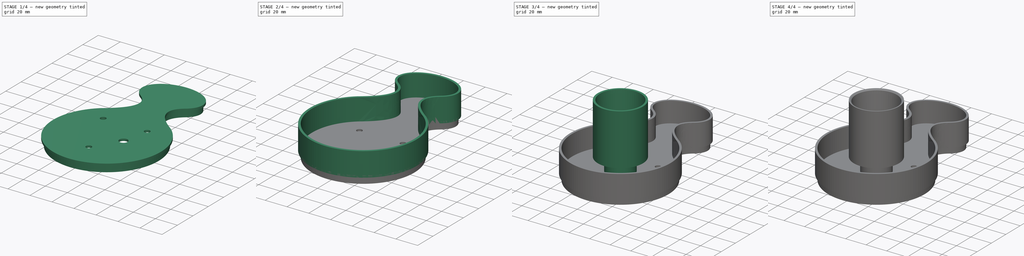
[diagram: build sequence overview — one tinted view per stage of 4, left to right]
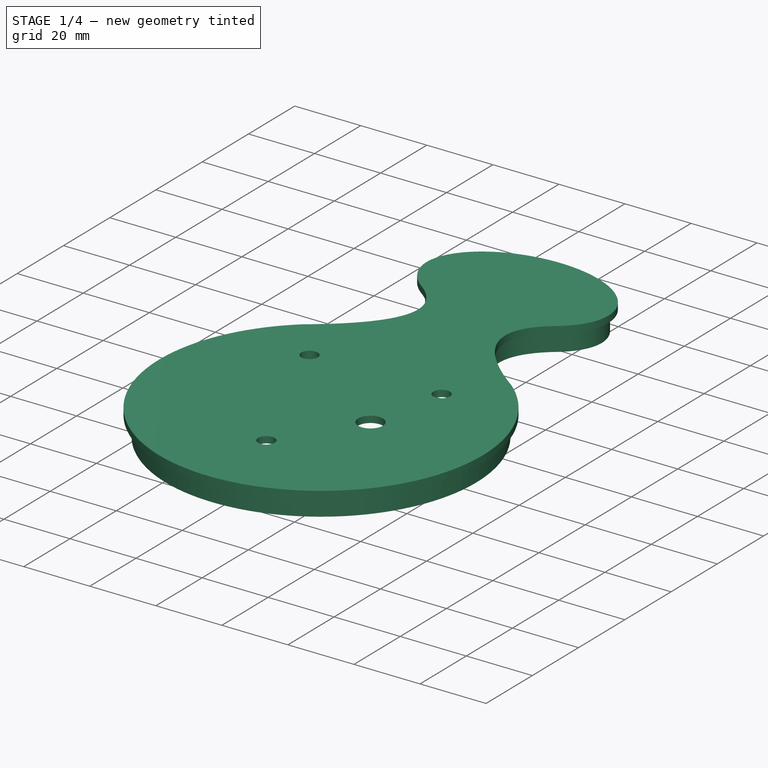
[diagram: stage 1 of 4 — iso view after this stage's code; geometry added in this stage tinted green]
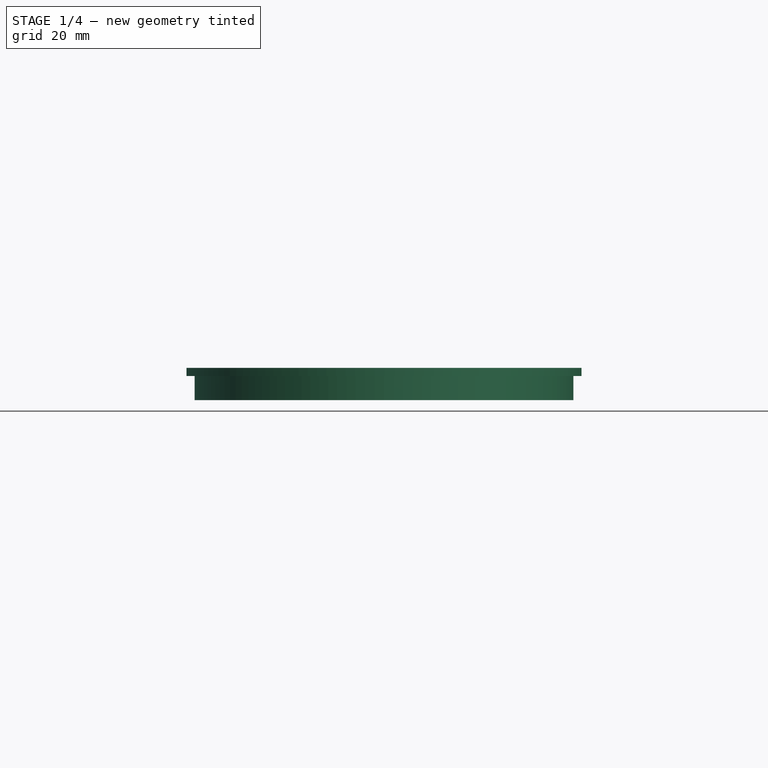
[diagram: stage 1 of 4 — front view after this stage's code; geometry added in this stage tinted green]
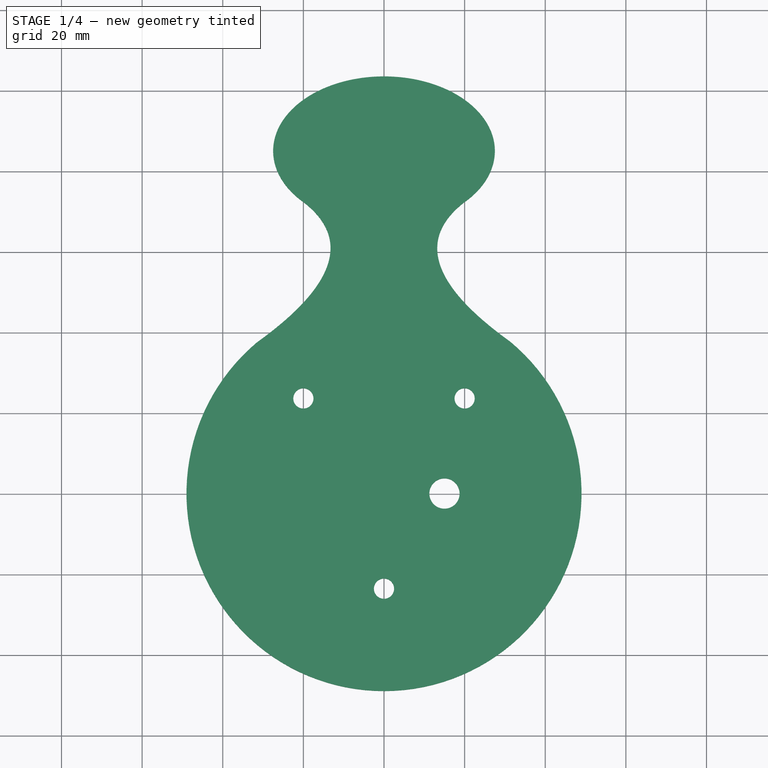
[diagram: stage 1 of 4 — top view after this stage's code; geometry added in this stage tinted green]
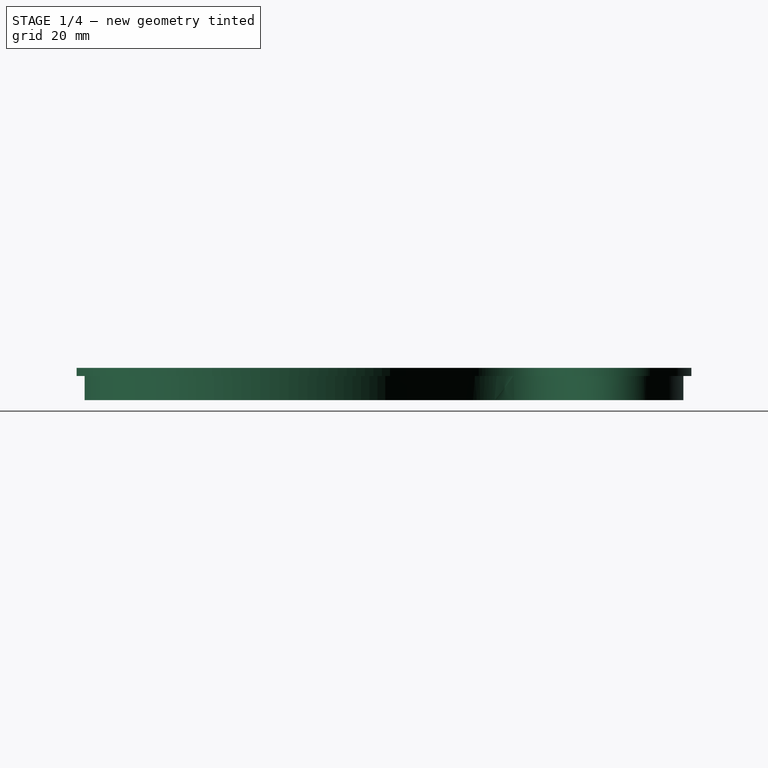
[diagram: stage 1 of 4 — right view after this stage's code; geometry added in this stage tinted green]
FCSTD DOCUMENT  (FreeCAD 0.19R)
Label: DuckOff4
License: All rights reserved
LicenseURL: http://en.wikipedia.org/wiki/All_rights_reserved
objects: Sketcher::SketchObject×12, PartDesign::Pad×5, PartDesign::Pocket×4, PartDesign::Body×3, PartDesign::Chamfer×2, PartDesign::SubtractiveLoft×1
note: 39 computed .brp shape members not serialized (recipe doc carries the construction recipe); baked Part::Feature solids carry a one-line shape summary decoded from their .brp

FEATURE [PartDesign::Body] Body001  label="Front"
  Group = -> [Sketch006,Pad002,Sketch007,Pocket001,Sketch008,Pocket002]
  Origin = -> Origin001
  Tip = -> Pocket002
FEATURE [Sketcher::SketchObject] Sketch013  label="Perimeter001"
  FullyConstrained = false
  MapMode = 5
  Support = -> [XY_Plane003]
  sketch-geometry (16):
    g0: ArcOfCircle CenterX=0 CenterY=0 CenterZ=0 NormalX=0 NormalY=0 NormalZ=1 AngleXU=0 Radius=49 StartAngle=2.27172 EndAngle=7.15911
    g1: Circle CenterX=-19.7369 CenterY=72.1176 CenterZ=0 NormalX=0 NormalY=0 NormalZ=1 AngleXU=0 Radius=1
    g2: Circle CenterX=-2.37782 CenterY=58.4113 CenterZ=0 NormalX=0 NormalY=0 NormalZ=1 AngleXU=0 Radius=1
    g3: Circle CenterX=-31.6014 CenterY=37.448 CenterZ=0 NormalX=0 NormalY=0 NormalZ=1 AngleXU=0 Radius=1
    g4: BSplineCurve PolesCount=3 KnotsCount=2 Degree=2 IsPeriodic=0
    g5: GeomPoint X=-31.6014 Y=37.448 Z=0
    g6: Circle CenterX=19.7369 CenterY=72.1176 CenterZ=0 NormalX=0 NormalY=0 NormalZ=1 AngleXU=0 Radius=0.989264
    g7: Circle CenterX=2.37782 CenterY=58.4113 CenterZ=0 NormalX=0 NormalY=0 NormalZ=1 AngleXU=0 Radius=1
    g8: Circle CenterX=31.3741 CenterY=37.6386 CenterZ=0 NormalX=0 NormalY=0 NormalZ=1 AngleXU=0 Radius=1
    g9: BSplineCurve PolesCount=3 KnotsCount=2 Degree=2 IsPeriodic=0
    g10: GeomPoint X=31.3741 Y=37.6386 Z=0
    g11: ArcOfEllipse CenterX=0 CenterY=85 CenterZ=0 NormalX=0 NormalY=0 NormalZ=1 MajorRadius=27.5 MinorRadius=18.5 AngleXU=0 StartAngle=5.51289 EndAngle=10.1951
    g12: LineSegment StartX=27.5 StartY=85 StartZ=0 EndX=-27.5 EndY=85 EndZ=0
    g13: LineSegment StartX=6.3e-15 StartY=103.5 StartZ=0 EndX=-6.3e-15 EndY=66.5 EndZ=0
    g14: GeomPoint X=20.347 Y=85 Z=0
    g15: GeomPoint X=-20.347 Y=85 Z=0
  constraints (21):
    c: Diameter(g0) = 98
    c: Equal(g1,g2)
    c: Equal(g1,g3)
    c: InternalAlignment(g1,g4)
    c: InternalAlignment(g2,g4)
    c: InternalAlignment(g3,g4)
    c: InternalAlignment(g6,g9)
    c: InternalAlignment(g7,g9)
    c: InternalAlignment(g8,g9)
    c: Coincident(g0,g5)
    c: Coincident(g0,g8)
    c: Coincident(g0,g10)
    c: Coincident(g0,g3)
    c: Symmetric(g7,g2,g-2)
    c: Coincident(g0,g-1)
    c: InternalAlignment(g12-g15 -> g11) x4
    c: Coincident(g11,g9)
    c: Coincident(g4,g11)
    c: Symmetric(g4,g9,g-2)
    c: DistanceX(g12,g11) = 27.5
    c: DistanceY(g11,g13) = 18.5
FEATURE [Sketcher::SketchObject] Sketch016  label="Holes"
  FullyConstrained = true
  MapMode = 5
  Placement = pos=(0,0,2) rot=(0,0,1;0rad)
  sketch-geometry (4):
    g0: Circle CenterX=0 CenterY=-23.6 CenterZ=0 NormalX=0 NormalY=0 NormalZ=1 AngleXU=0 Radius=2.5
    g1: Circle CenterX=-20 CenterY=23.6 CenterZ=0 NormalX=0 NormalY=0 NormalZ=1 AngleXU=0 Radius=2.5
    g2: Circle CenterX=20 CenterY=23.6 CenterZ=0 NormalX=0 NormalY=0 NormalZ=1 AngleXU=0 Radius=2.5
    g3: Circle CenterX=15 CenterY=0 CenterZ=0 NormalX=0 NormalY=0 NormalZ=1 AngleXU=0 Radius=3.75
  constraints (11):
    c: PointOnObject(g0,g-2)
    c: DistanceY(g0,g-1) = 23.6
    c: DistanceX(g1,g-1) = 20
    c: DistanceY(g-1,g1) = 23.6
    c: Symmetric(g1,g2,g-2)
    c: Equal(g1,g0)
    c: Equal(g0,g2)
    c: Diameter(g2) = 5
    c: PointOnObject(g3,g-1)
    c: DistanceX(g-1,g3) = 15
    c: Diameter(g3) = 7.5
FEATURE [PartDesign::Pad] Pad006
  Direction = (1,1,1)
  Length = 2
  Length2 = 100
  Profile = -> Sketch013
  Type = 0
FEATURE [Sketcher::SketchObject] Sketch017  label="combined edge"
  FullyConstrained = false
  Placement = pos=(0,0,2) rot=(0,0,1;0rad)
  sketch-geometry (34):
    g0: ArcOfCircle CenterX=-3.9e-15 CenterY=0 CenterZ=0 NormalX=0 NormalY=0 NormalZ=1 AngleXU=0 Radius=47 StartAngle=2.26567 EndAngle=7.15911
    g1: ArcOfEllipse CenterX=0 CenterY=85 CenterZ=0 NormalX=0 NormalY=0 NormalZ=1 MajorRadius=25.5 MinorRadius=16.5 AngleXU=0 StartAngle=5.61214 EndAngle=10.138
    g2: LineSegment StartX=25.5 StartY=85 StartZ=0 EndX=-25.5 EndY=85 EndZ=0
    g3: LineSegment StartX=0 StartY=101.5 StartZ=0 EndX=0 EndY=68.5 EndZ=0
    g4: GeomPoint X=19.4422 Y=85 Z=0
    g5: GeomPoint X=-19.4422 Y=85 Z=0
    g6: Circle CenterX=-19.2854 CenterY=74.2051 CenterZ=0 NormalX=0 NormalY=0 NormalZ=1 AngleXU=0 Radius=1
    g7: Circle CenterX=1.40607 CenterY=59 CenterZ=0 NormalX=0 NormalY=0 NormalZ=1 AngleXU=0 Radius=1
    g8: Circle CenterX=-30.0935 CenterY=36.1024 CenterZ=0 NormalX=0 NormalY=0 NormalZ=1 AngleXU=0 Radius=1
    g9: BSplineCurve PolesCount=3 KnotsCount=2 Degree=2 IsPeriodic=0
    g10: GeomPoint X=-30.0935 Y=36.1024 Z=0
    g11: Circle CenterX=19.9709 CenterY=74.7403 CenterZ=0 NormalX=0 NormalY=0 NormalZ=1 AngleXU=0 Radius=0.989264
    g12: Circle CenterX=-1.40607 CenterY=59 CenterZ=0 NormalX=0 NormalY=0 NormalZ=1 AngleXU=0 Radius=1
    g13: Circle CenterX=30.0935 CenterY=36.1024 CenterZ=0 NormalX=0 NormalY=0 NormalZ=1 AngleXU=0 Radius=1
    g14: BSplineCurve PolesCount=3 KnotsCount=2 Degree=2 IsPeriodic=0
    g15: GeomPoint X=19.9709 Y=74.7403 Z=0
    g16: GeomPoint X=30.0935 Y=36.1024 Z=0
    g17: ArcOfCircle CenterX=4.3e-15 CenterY=0 CenterZ=0 NormalX=0 NormalY=0 NormalZ=1 AngleXU=0 Radius=45 StartAngle=2.2107 EndAngle=7.21408
    g18: ArcOfEllipse CenterX=0 CenterY=85 CenterZ=0 NormalX=0 NormalY=0 NormalZ=1 MajorRadius=23.5 MinorRadius=14.5 AngleXU=0 StartAngle=5.72802 EndAngle=10.033
    g19: LineSegment StartX=23.5 StartY=85 StartZ=0 EndX=-23.5 EndY=85 EndZ=0
    g20: LineSegment StartX=0 StartY=99.5 StartZ=0 EndX=0 EndY=70.5 EndZ=0
    g21: GeomPoint X=18.4932 Y=85 Z=0
    g22: GeomPoint X=-18.4932 Y=85 Z=0
    g23: Circle CenterX=-19.2856 CenterY=76.7145 CenterZ=0 NormalX=0 NormalY=0 NormalZ=1 AngleXU=0 Radius=1
    g24: Circle CenterX=4.06677 CenterY=59 CenterZ=0 NormalX=0 NormalY=0 NormalZ=1 AngleXU=0 Radius=1
    g25: Circle CenterX=-26.8704 CenterY=36.0968 CenterZ=0 NormalX=0 NormalY=0 NormalZ=1 AngleXU=0 Radius=1
    g26: BSplineCurve PolesCount=3 KnotsCount=2 Degree=2 IsPeriodic=0
    g27: GeomPoint X=-26.8704 Y=36.0968 Z=0
    g28: Circle CenterX=19.9707 CenterY=77.3573 CenterZ=0 NormalX=0 NormalY=0 NormalZ=1 AngleXU=0 Radius=0.989264
    g29: Circle CenterX=-4.06677 CenterY=59 CenterZ=0 NormalX=0 NormalY=0 NormalZ=1 AngleXU=0 Radius=1
    g30: Circle CenterX=26.8704 CenterY=36.0968 CenterZ=0 NormalX=0 NormalY=0 NormalZ=1 AngleXU=0 Radius=1
    g31: BSplineCurve PolesCount=3 KnotsCount=2 Degree=2 IsPeriodic=0
    g32: GeomPoint X=19.9707 Y=77.3573 Z=0
    g33: GeomPoint X=26.8704 Y=36.0968 Z=0
  constraints (55):
    c: Diameter(g0) = 94
    c: InternalAlignment(g2-g5 -> g1) x4
    c: PointOnObject(g1,g-2)
    c: Horizontal(g2)
    c: Weight(g6) = 1
    c: Equal(g6,g7)
    c: Equal(g6,g8)
    c: InternalAlignment(g6,g9)
    c: InternalAlignment(g7,g9)
    c: InternalAlignment(g8,g9)
    c: InternalAlignment(g11,g14)
    c: InternalAlignment(g12,g14)
    c: InternalAlignment(g13,g14)
    c: Coincident(g0,g10)
    c: Coincident(g1,g6)
    c: Coincident(g1,g11)
    c: Coincident(g1,g15)
    c: Coincident(g0,g13)
    c: Coincident(g0,g16)
    c: Coincident(g0,g8)
    c: Symmetric(g0,g0,g-2)
    c: Symmetric(g12,g7,g-2)
    c: Coincident(g0,g-1)
    c: Distance(g0,g0) = 47
    c: DistanceY(g0,g7) = 59
    c: DistanceY(g0,g1) = 85
    c: DistanceY(g1,g3) = 16.5
    c: DistanceX(g2,g1) = 25.5
    c: Diameter(g17) = 90
    c: InternalAlignment(g19-g22 -> g18) x4
    c: PointOnObject(g18,g-2)
    c: Horizontal(g19)
    c: Weight(g23) = 1
    c: Equal(g23,g24)
    c: Equal(g23,g25)
    c: InternalAlignment(g23,g26)
    c: InternalAlignment(g24,g26)
    c: InternalAlignment(g25,g26)
    c: InternalAlignment(g28,g31)
    c: InternalAlignment(g29,g31)
    c: InternalAlignment(g30,g31)
    c: Coincident(g17,g27)
    c: Coincident(g18,g23)
    c: Coincident(g18,g28)
    c: Coincident(g18,g32)
    c: Coincident(g17,g30)
    c: Coincident(g17,g33)
    c: Coincident(g17,g25)
    c: Symmetric(g17,g17,g-2)
    c: Symmetric(g29,g24,g-2)
    c: Coincident(g17,g-1)
    c: DistanceY(g17,g24) = 59
    c: DistanceY(g17,g18) = 85
    c: DistanceY(g18,g20) = 14.5
    c: DistanceX(g19,g18) = 23.5
FEATURE [PartDesign::Pad] Pad007
  BaseFeature = -> Pad006
  Direction = (1,1,1)
  Length = 8
  Length2 = 100
  Profile = -> Sketch017
  Reversed = true
  Type = 0
FEATURE [PartDesign::Pocket] Pocket003
  BaseFeature = -> Pad007
  Length = 5
  Length2 = 100
  Profile = -> Sketch016
  Type = 1
FEATURE [PartDesign::Body] Body003  label="Back"
  Group = -> [Sketch013,Sketch016,Pad006,Sketch017,Pad007,Pocket003]
  Origin = -> Origin003
  Placement = pos=(0,0,22) rot=(0,0,1;0rad)
  Tip = -> Pocket003
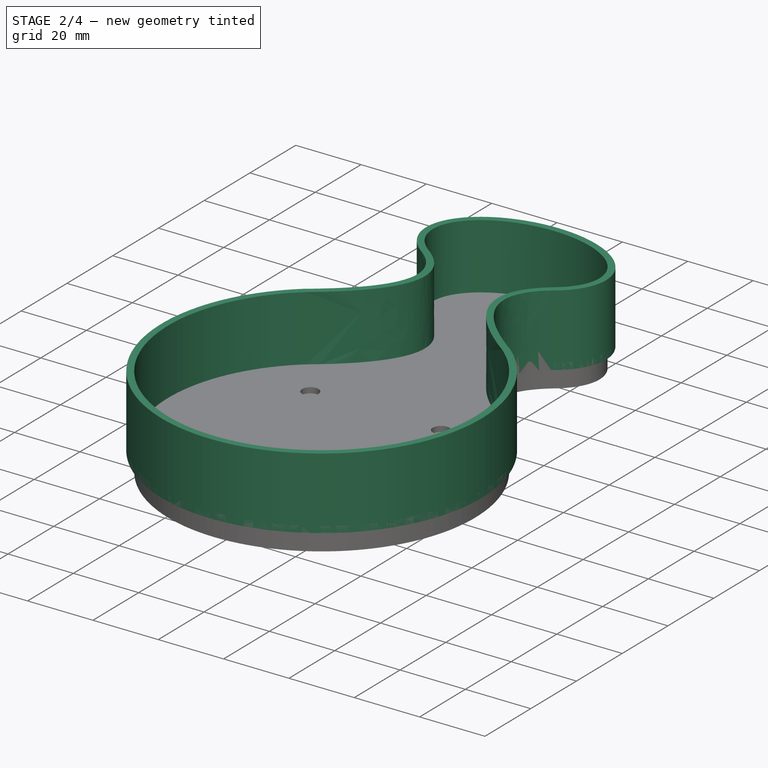
[diagram: stage 2 of 4 — iso view after this stage's code; geometry added in this stage tinted green]
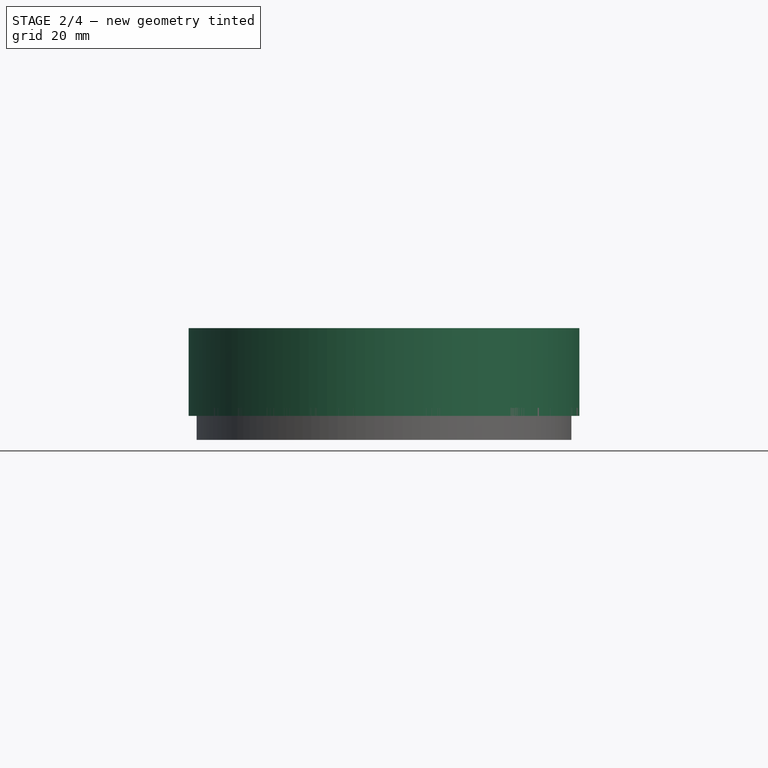
[diagram: stage 2 of 4 — front view after this stage's code; geometry added in this stage tinted green]
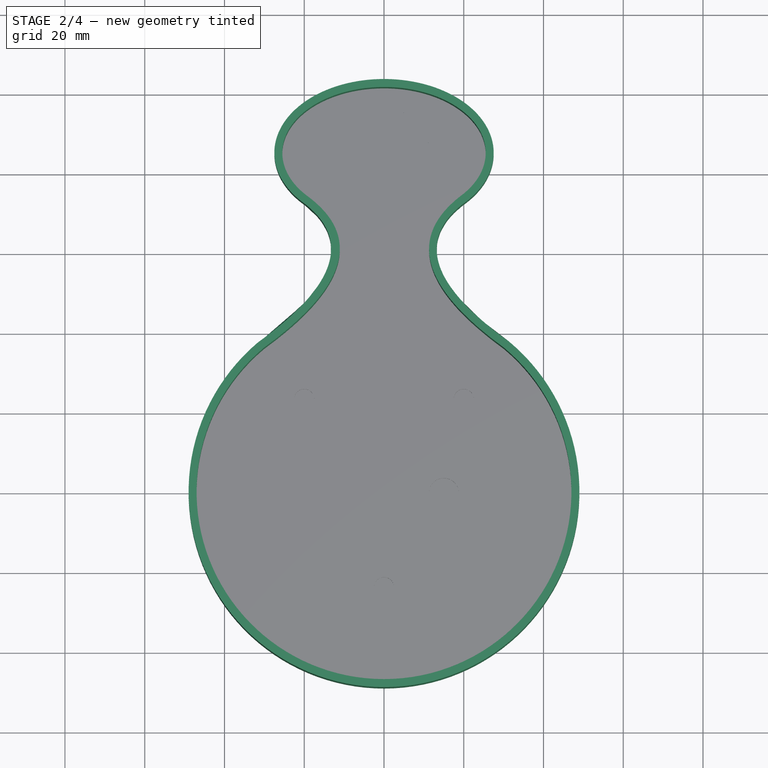
[diagram: stage 2 of 4 — top view after this stage's code; geometry added in this stage tinted green]
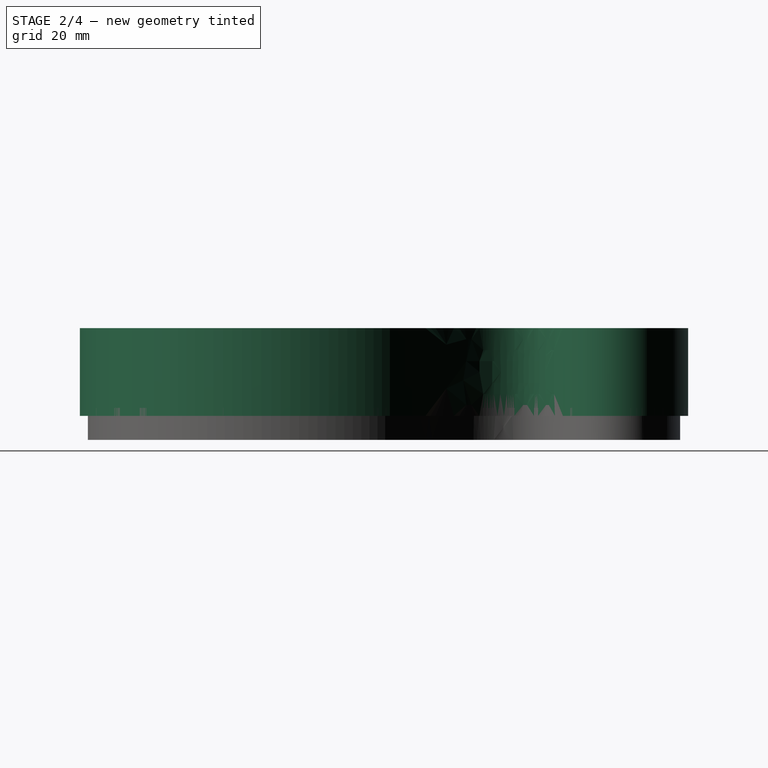
[diagram: stage 2 of 4 — right view after this stage's code; geometry added in this stage tinted green]
FEATURE [PartDesign::Body] Body  label="Joiner"
  Group = -> [Sketch,Pad,Sketch001,Pad001,Sketch002,Sketch003,Sketch004,SubtractiveLoft,Sketch005,Pocket,Chamfer,Chamfer001]
  Origin = -> Origin
  Tip = -> Chamfer001
FEATURE [Sketcher::SketchObject] Sketch007  label="square"
  AttachmentOffset = pos=(0,0,0.3) rot=(0,0,1;0rad)
  FullyConstrained = true
  MapMode = 5
  Placement = pos=(0,0,0.3) rot=(0,0,1;0rad)
  Support = -> [XY_Plane001]
  sketch-geometry (4):
    g0: LineSegment StartX=-29.75 StartY=29.75 StartZ=0 EndX=29.75 EndY=29.75 EndZ=0
    g1: LineSegment StartX=29.75 StartY=29.75 StartZ=0 EndX=29.75 EndY=-29.75 EndZ=0
    g2: LineSegment StartX=29.75 StartY=-29.75 StartZ=0 EndX=-29.75 EndY=-29.75 EndZ=0
    g3: LineSegment StartX=-29.75 StartY=-29.75 StartZ=0 EndX=-29.75 EndY=29.75 EndZ=0
  constraints (10):
    c: Coincident(g0,g1)
    c: Coincident(g1,g2)
    c: Coincident(g2,g3)
    c: Coincident(g3,g0)
    c: Horizontal(g0)
    c: Vertical(g1)
    c: Equal(g2,g1)
    c: Symmetric(g2,g1,g-2)
    c: Symmetric(g2,g0,g-1)
    c: DistanceX(g2,g2) = 59.5
FEATURE [Sketcher::SketchObject] Sketch008  label="Injside Wall"
  AttachmentOffset = pos=(0,0,2) rot=(0,0,1;0rad)
  FullyConstrained = false
  MapMode = 5
  Placement = pos=(0,0,2) rot=(0,0,1;0rad)
  Support = -> [XY_Plane001]
  sketch-geometry (30):
    g0: LineSegment StartX=-30.75 StartY=30.75 StartZ=0 EndX=30.75 EndY=30.75 EndZ=0
    g1: LineSegment StartX=30.75 StartY=30.75 StartZ=0 EndX=30.75 EndY=-30.75 EndZ=0
    g2: LineSegment StartX=30.75 StartY=-30.75 StartZ=0 EndX=-30.75 EndY=-30.75 EndZ=0
    g3: LineSegment StartX=-30.75 StartY=-30.75 StartZ=0 EndX=-30.75 EndY=30.75 EndZ=0
    g4: ArcOfCircle CenterX=-3.9e-15 CenterY=0 CenterZ=0 NormalX=0 NormalY=0 NormalZ=1 AngleXU=0 Radius=47 StartAngle=2.26567 EndAngle=7.15911
    g5: ArcOfEllipse CenterX=0 CenterY=85 CenterZ=0 NormalX=0 NormalY=0 NormalZ=1 MajorRadius=25.5 MinorRadius=16.5 AngleXU=0 StartAngle=5.61214 EndAngle=10.138
    g6: LineSegment StartX=25.5 StartY=85 StartZ=0 EndX=-25.5 EndY=85 EndZ=0
    g7: LineSegment StartX=0 StartY=101.5 StartZ=0 EndX=0 EndY=68.5 EndZ=0
    g8: GeomPoint X=19.4422 Y=85 Z=0
    g9: GeomPoint X=-19.4422 Y=85 Z=0
    g10: Circle CenterX=-19.2854 CenterY=74.2051 CenterZ=0 NormalX=0 NormalY=0 NormalZ=1 AngleXU=0 Radius=1
    g11: Circle CenterX=1.40607 CenterY=59 CenterZ=0 NormalX=0 NormalY=0 NormalZ=1 AngleXU=0 Radius=1
    g12: Circle CenterX=-30.0935 CenterY=36.1024 CenterZ=0 NormalX=0 NormalY=0 NormalZ=1 AngleXU=0 Radius=1
    g13: BSplineCurve PolesCount=3 KnotsCount=2 Degree=2 IsPeriodic=0
    g14: GeomPoint X=-30.0935 Y=36.1024 Z=0
    g15: Circle CenterX=19.9709 CenterY=74.7403 CenterZ=0 NormalX=0 NormalY=0 NormalZ=1 AngleXU=0 Radius=0.989264
    g16: Circle CenterX=-1.40607 CenterY=59 CenterZ=0 NormalX=0 NormalY=0 NormalZ=1 AngleXU=0 Radius=1
    g17: Circle CenterX=30.0935 CenterY=36.1024 CenterZ=0 NormalX=0 NormalY=0 NormalZ=1 AngleXU=0 Radius=1
    g18: BSplineCurve PolesCount=3 KnotsCount=2 Degree=2 IsPeriodic=0
    g19: GeomPoint X=19.9709 Y=74.7403 Z=0
    g20: GeomPoint X=30.0935 Y=36.1024 Z=0
    g21: LineSegment StartX=-9 StartY=69.5 StartZ=0 EndX=9 EndY=69.5 EndZ=0
    g22: LineSegment StartX=9 StartY=69.5 StartZ=0 EndX=9 EndY=33.5 EndZ=0
    g23: LineSegment StartX=9 StartY=33.5 StartZ=0 EndX=-9 EndY=33.5 EndZ=0
    g24: LineSegment StartX=-9 StartY=33.5 StartZ=0 EndX=-9 EndY=69.5 EndZ=0
    g25: LineSegment StartX=-16.25 StartY=97 StartZ=0 EndX=16.25 EndY=97 EndZ=0
    g26: LineSegment StartX=16.25 StartY=97 StartZ=0 EndX=16.25 EndY=73 EndZ=0
    g27: LineSegment StartX=16.25 StartY=73 StartZ=0 EndX=-16.25 EndY=73 EndZ=0
    g28: LineSegment StartX=-16.25 StartY=73 StartZ=0 EndX=-16.25 EndY=97 EndZ=0
    g29: Circle CenterX=0 CenterY=85 CenterZ=0 NormalX=0 NormalY=0 NormalZ=1 AngleXU=0 Radius=11.5
  constraints (61):
    c: Coincident(g0,g1)
    c: Coincident(g1,g2)
    c: Coincident(g2,g3)
    c: Coincident(g3,g0)
    c: Horizontal(g0)
    c: Vertical(g1)
    c: Equal(g2,g1)
    c: Symmetric(g2,g1,g-2)
    c: Symmetric(g2,g0,g-1)
    c: DistanceX(g2,g2) = 61.5
    c: Diameter(g4) = 94
    c: InternalAlignment(g6-g9 -> g5) x4
    c: PointOnObject(g5,g-2)
    c: Horizontal(g6)
    c: Weight(g10) = 1
    c: Equal(g10,g11)
    c: Equal(g10,g12)
    c: InternalAlignment(g10,g13)
    c: InternalAlignment(g11,g13)
    c: InternalAlignment(g12,g13)
    c: InternalAlignment(g15,g18)
    c: InternalAlignment(g16,g18)
    c: InternalAlignment(g17,g18)
    c: Coincident(g4,g14)
    c: Coincident(g5,g10)
    c: Coincident(g5,g15)
    c: Coincident(g5,g19)
    c: Coincident(g4,g17)
    c: Coincident(g4,g20)
    c: Coincident(g4,g12)
    c: Symmetric(g4,g4,g-2)
    c: Symmetric(g16,g11,g-2)
    c: Coincident(g4,g-1)
    c: Coincident(g21,g22)
    c: Coincident(g22,g23)
    c: Coincident(g23,g24)
    c: Coincident(g24,g21)
    c: Horizontal(g21)
    c: Vertical(g22)
    c: Vertical(g24)
    c: Symmetric(g23,g22,g-2)
    c: DistanceX(g23,g23) = 18
    c: DistanceY(g24,g24) = 36
    c: Distance(g4,g4) = 47
    c: DistanceY(g4,g22) = 33.5
    c: Coincident(g25,g26)
    c: Coincident(g26,g27)
    c: Coincident(g27,g28)
    c: Coincident(g28,g25)
    c: Horizontal(g25)
    c: Vertical(g26)
    c: DistanceX(g27,g27) = 32.5
    c: Symmetric(g26,g27,g7)
    c: Symmetric(g27,g25,g6)
    c: DistanceY(g26,g26) = 24
    c: Diameter(g29) = 23
    c: Coincident(g29,g5)
    c: DistanceY(g4,g11) = 59
    c: DistanceY(g4,g5) = 85
    c: DistanceY(g5,g7) = 16.5
    c: DistanceX(g6,g5) = 25.5
FEATURE [Sketcher::SketchObject] Sketch006  label="Perimeter"
  ExternalGeometry = -> [Sketch008]
  FullyConstrained = false
  MapMode = 5
  Support = -> [XY_Plane001]
  sketch-geometry (21):
    g0: LineSegment StartX=-30.75 StartY=30.75 StartZ=0 EndX=30.75 EndY=30.75 EndZ=0
    g1: LineSegment StartX=30.75 StartY=30.75 StartZ=0 EndX=30.75 EndY=-30.75 EndZ=0
    g2: LineSegment StartX=30.75 StartY=-30.75 StartZ=0 EndX=-30.75 EndY=-30.75 EndZ=0
    g3: LineSegment StartX=-30.75 StartY=-30.75 StartZ=0 EndX=-30.75 EndY=30.75 EndZ=0
    g4: ArcOfCircle CenterX=0 CenterY=0 CenterZ=0 NormalX=0 NormalY=0 NormalZ=1 AngleXU=0 Radius=49 StartAngle=2.27172 EndAngle=7.15911
    g5: Circle CenterX=-19.7369 CenterY=72.1176 CenterZ=0 NormalX=0 NormalY=0 NormalZ=1 AngleXU=0 Radius=1
    g6: Circle CenterX=-2.37782 CenterY=58.4113 CenterZ=0 NormalX=0 NormalY=0 NormalZ=1 AngleXU=0 Radius=1
    g7: Circle CenterX=-31.6014 CenterY=37.448 CenterZ=0 NormalX=0 NormalY=0 NormalZ=1 AngleXU=0 Radius=1
    g8: BSplineCurve PolesCount=3 KnotsCount=2 Degree=2 IsPeriodic=0
    g9: GeomPoint X=-31.6014 Y=37.448 Z=0
    g10: Circle CenterX=19.7369 CenterY=72.1176 CenterZ=0 NormalX=0 NormalY=0 NormalZ=1 AngleXU=0 Radius=0.989264
    g11: Circle CenterX=2.37782 CenterY=58.4113 CenterZ=0 NormalX=0 NormalY=0 NormalZ=1 AngleXU=0 Radius=1
    g12: Circle CenterX=31.3741 CenterY=37.6386 CenterZ=0 NormalX=0 NormalY=0 NormalZ=1 AngleXU=0 Radius=1
    g13: BSplineCurve PolesCount=3 KnotsCount=2 Degree=2 IsPeriodic=0
    g14: GeomPoint X=31.3741 Y=37.6386 Z=0
    g15: ArcOfEllipse CenterX=0 CenterY=85 CenterZ=0 NormalX=0 NormalY=0 NormalZ=1 MajorRadius=27.5 MinorRadius=18.5 AngleXU=0 StartAngle=5.51289 EndAngle=10.1951
    g16: LineSegment StartX=27.5 StartY=85 StartZ=0 EndX=-27.5 EndY=85 EndZ=0
    g17: LineSegment StartX=6.3e-15 StartY=103.5 StartZ=0 EndX=-6.3e-15 EndY=66.5 EndZ=0
    g18: GeomPoint X=20.347 Y=85 Z=0
    g19: GeomPoint X=-20.347 Y=85 Z=0
    g20: Circle CenterX=0 CenterY=85 CenterZ=0 NormalX=0 NormalY=0 NormalZ=1 AngleXU=0 Radius=11.5
  constraints (35):
    c: Coincident(g0,g1)
    c: Coincident(g1,g2)
    c: Coincident(g2,g3)
    c: Coincident(g3,g0)
    c: Horizontal(g0)
    c: Vertical(g1)
    c: Equal(g2,g1)
    c: Symmetric(g2,g1,g-2)
    c: Symmetric(g2,g0,g-1)
    c: DistanceX(g2,g2) = 61.5
    c: Diameter(g4) = 98
    c: Equal(g5,g6)
    c: Equal(g5,g7)
    c: InternalAlignment(g5,g8)
    c: InternalAlignment(g6,g8)
    c: InternalAlignment(g7,g8)
    c: InternalAlignment(g10,g13)
    c: InternalAlignment(g11,g13)
    c: InternalAlignment(g12,g13)
    c: Coincident(g4,g9)
    c: Coincident(g4,g12)
    c: Coincident(g4,g14)
    c: Coincident(g4,g7)
    c: Symmetric(g11,g6,g-2)
    c: Coincident(g4,g-1)
    c: Distance(g-3,g4) = 2
    c: InternalAlignment(g16-g19 -> g15) x4
    c: Coincident(g15,g-4)
    c: Coincident(g15,g13)
    c: Coincident(g8,g15)
    c: Symmetric(g8,g13,g-2)
    c: DistanceX(g16,g15) = 27.5
    c: DistanceY(g15,g17) = 18.5
    c: Coincident(g20,g15)
    c: Diameter(g20) = 23
FEATURE [PartDesign::Pad] Pad002
  Direction = (1,1,1)
  Length = 22
  Length2 = 100
  Profile = -> Sketch006
  Type = 0
FEATURE [PartDesign::Pocket] Pocket001
  BaseFeature = -> Pad002
  Length = 5
  Length2 = 100
  Profile = -> Sketch007
  Reversed = true
  Type = 1
FEATURE [PartDesign::Pocket] Pocket002
  BaseFeature = -> Pocket001
  Length = 5
  Length2 = 100
  Profile = -> Sketch008
  Reversed = true
  Type = 1
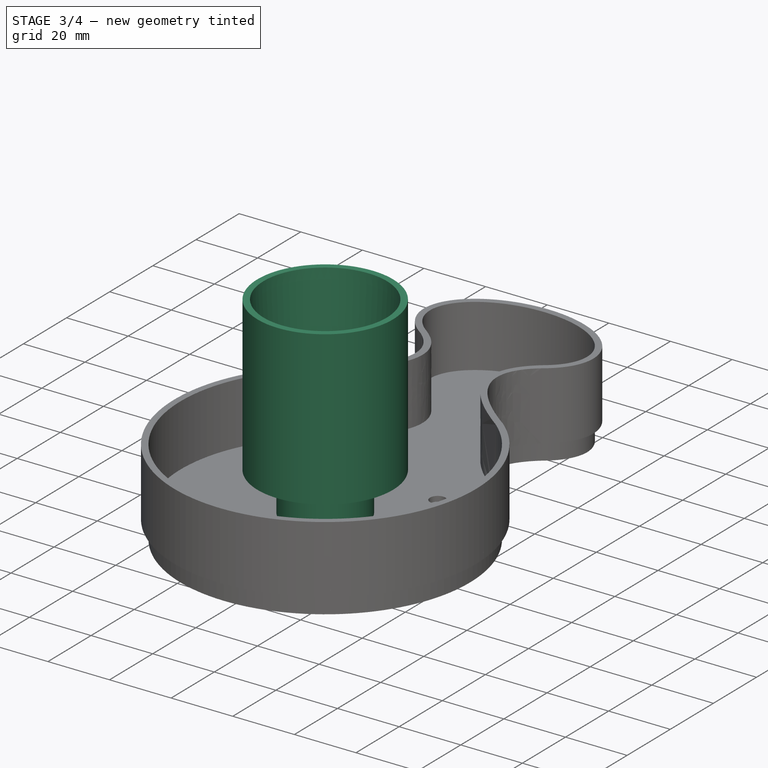
[diagram: stage 3 of 4 — iso view after this stage's code; geometry added in this stage tinted green]
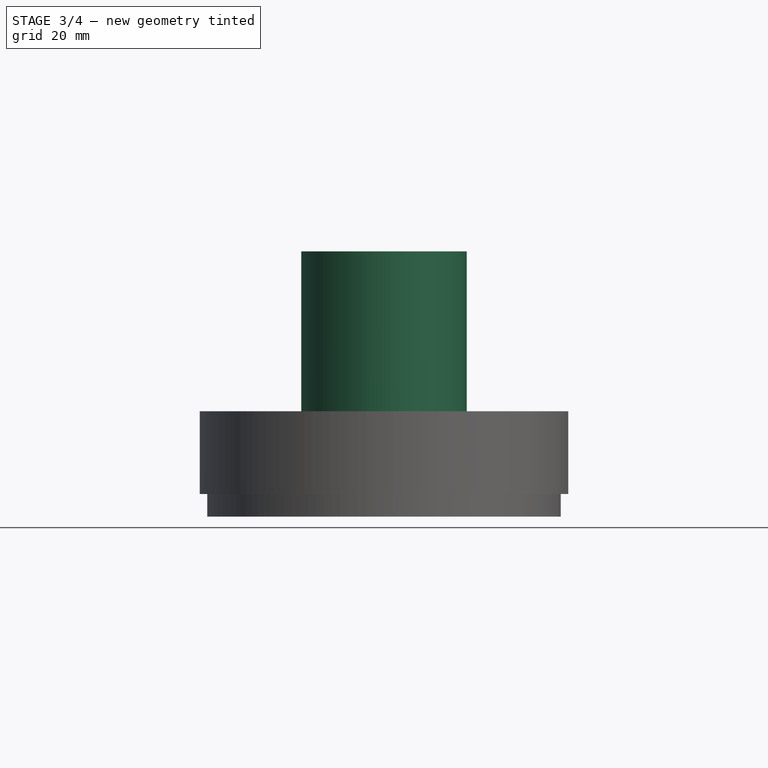
[diagram: stage 3 of 4 — front view after this stage's code; geometry added in this stage tinted green]
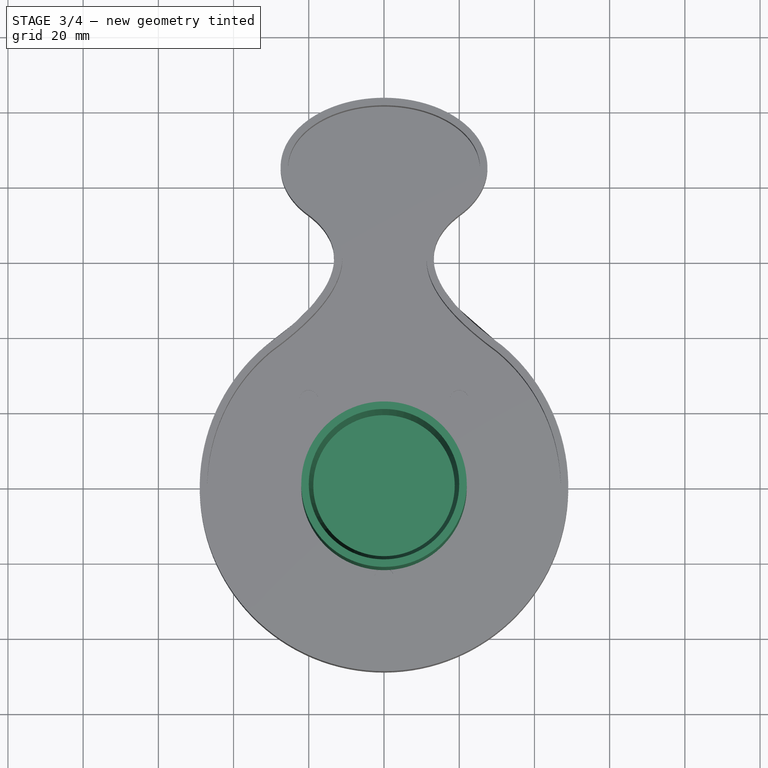
[diagram: stage 3 of 4 — top view after this stage's code; geometry added in this stage tinted green]
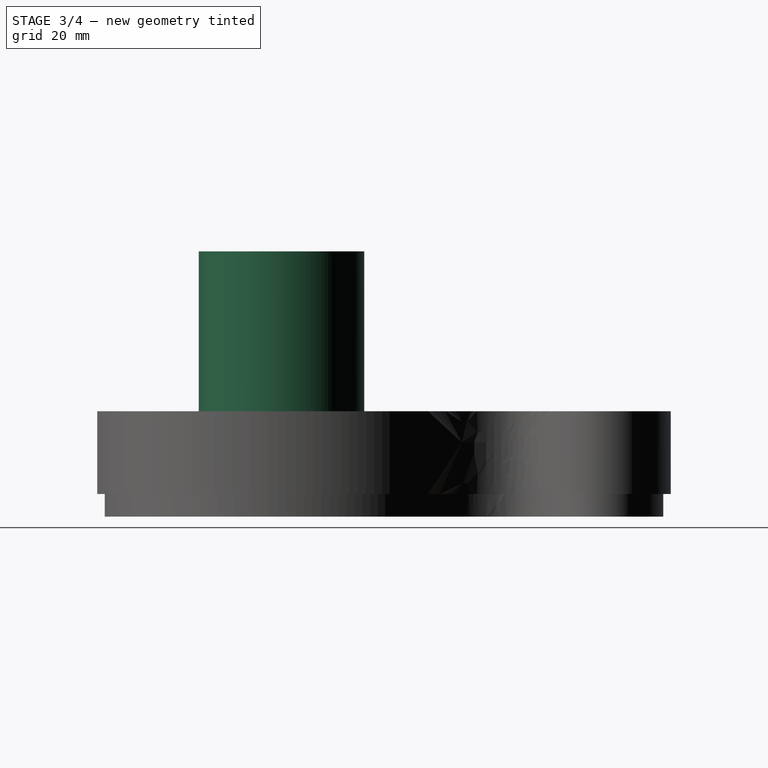
[diagram: stage 3 of 4 — right view after this stage's code; geometry added in this stage tinted green]
FEATURE [Sketcher::SketchObject] Sketch
  FullyConstrained = true
  MapMode = 5
  Support = -> [XY_Plane]
  sketch-geometry (1):
    g0: Circle CenterX=0 CenterY=0 CenterZ=0 NormalX=0 NormalY=0 NormalZ=1 AngleXU=0 Radius=13
  constraints (2):
    c: Coincident(g0,g-1)
    c: Diameter(g0) = 26
FEATURE [PartDesign::Pad] Pad
  Direction = (1,1,1)
  Length = 14.5
  Length2 = 100
  Profile = -> Sketch
  Type = 0
FEATURE [Sketcher::SketchObject] Sketch001
  FullyConstrained = true
  MapMode = 5
  Placement = pos=(0,0,14.5) rot=(0,0,1;0rad)
  Support = -> [Pad]
  sketch-geometry (1):
    g0: Circle CenterX=0 CenterY=0 CenterZ=0 NormalX=0 NormalY=0 NormalZ=1 AngleXU=0 Radius=22
  constraints (2):
    c: Coincident(g0,g-1)
    c: Diameter(g0) = 44
FEATURE [PartDesign::Pad] Pad001
  BaseFeature = -> Pad
  Direction = (1,1,1)
  Length = 50
  Length2 = 100
  Profile = -> Sketch001
  Type = 0
FEATURE [Sketcher::SketchObject] Sketch002
  FullyConstrained = true
  MapMode = 5
  Placement = pos=(0,0,64.5) rot=(0,0,1;0rad)
  Support = -> [Pad001]
  sketch-geometry (1):
    g0: Circle CenterX=0 CenterY=0 CenterZ=0 NormalX=0 NormalY=0 NormalZ=1 AngleXU=0 Radius=20
  constraints (2):
    c: Coincident(g0,g-1)
    c: Diameter(g0) = 40
FEATURE [Sketcher::SketchObject] Sketch003
  AttachmentOffset = pos=(0,0,-20) rot=(0,0,1;0rad)
  FullyConstrained = true
  MapMode = 5
  Placement = pos=(0,0,44.5) rot=(0,0,1;0rad)
  Support = -> [Pad001]
  sketch-geometry (1):
    g0: Circle CenterX=0 CenterY=0 CenterZ=0 NormalX=0 NormalY=0 NormalZ=1 AngleXU=0 Radius=18.8
  constraints (2):
    c: Coincident(g0,g-1)
    c: Diameter(g0) = 37.6
FEATURE [Sketcher::SketchObject] Sketch004
  AttachmentOffset = pos=(0,0,-25) rot=(0,0,1;0rad)
  FullyConstrained = true
  MapMode = 5
  Placement = pos=(0,0,39.5) rot=(0,0,1;0rad)
  Support = -> [Pad001]
  sketch-geometry (1):
    g0: Circle CenterX=0 CenterY=0 CenterZ=0 NormalX=0 NormalY=0 NormalZ=1 AngleXU=0 Radius=18.8
  constraints (2):
    c: Coincident(g0,g-1)
    c: Diameter(g0) = 37.6
FEATURE [PartDesign::SubtractiveLoft] SubtractiveLoft
  BaseFeature = -> Pad001
  Closed = true
  Profile = -> Sketch002
  Ruled = true
  Sections = -> [Sketch003,Sketch004]
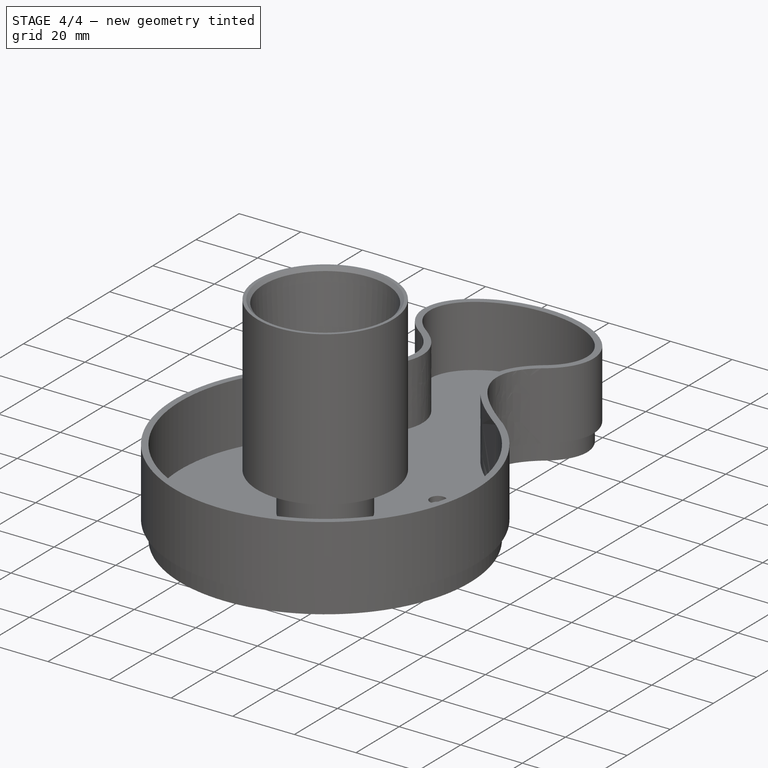
[diagram: stage 4 of 4 — iso view after this stage's code; geometry added in this stage tinted green]
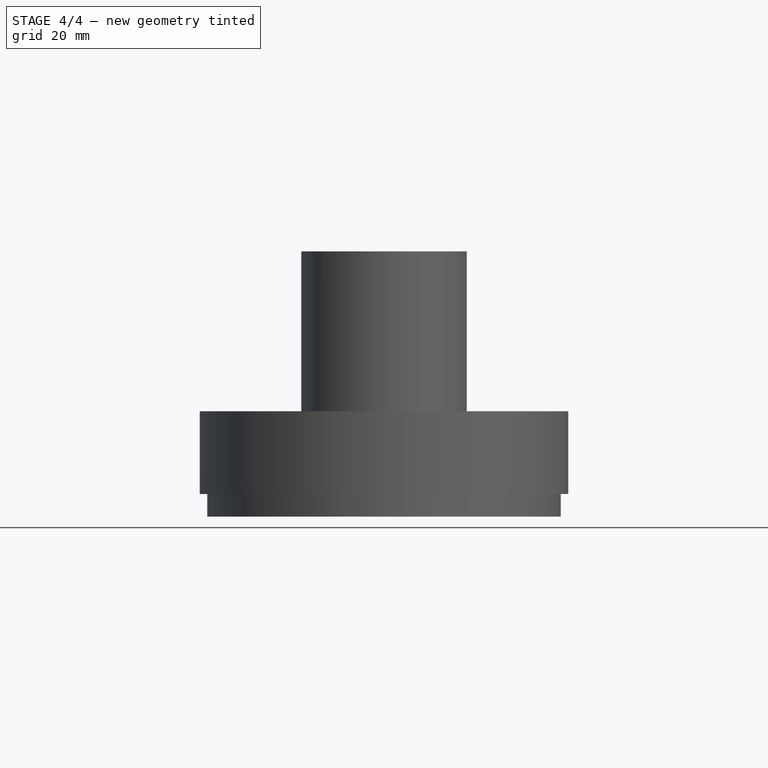
[diagram: stage 4 of 4 — front view after this stage's code; geometry added in this stage tinted green]
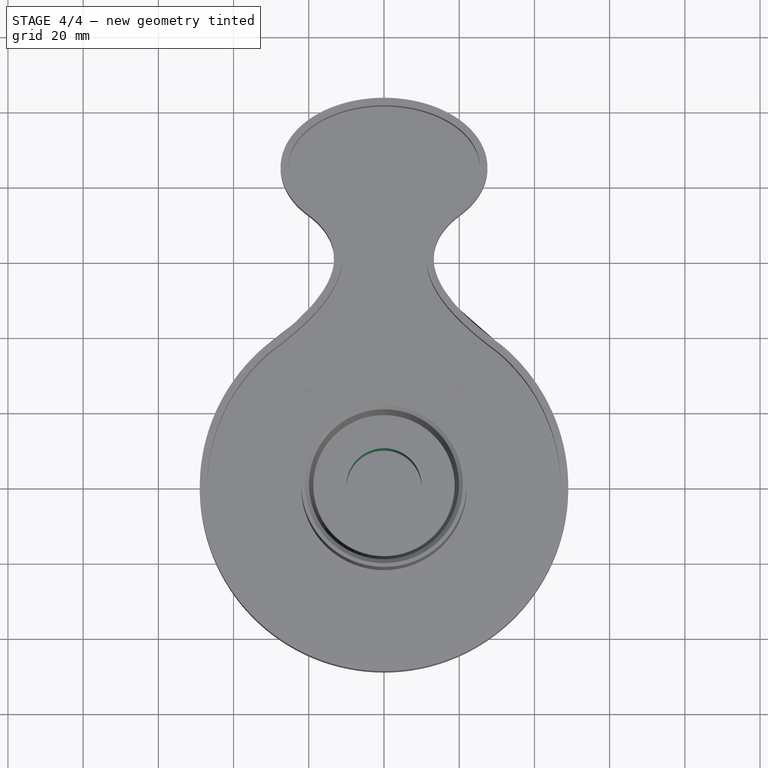
[diagram: stage 4 of 4 — top view after this stage's code; geometry added in this stage tinted green]
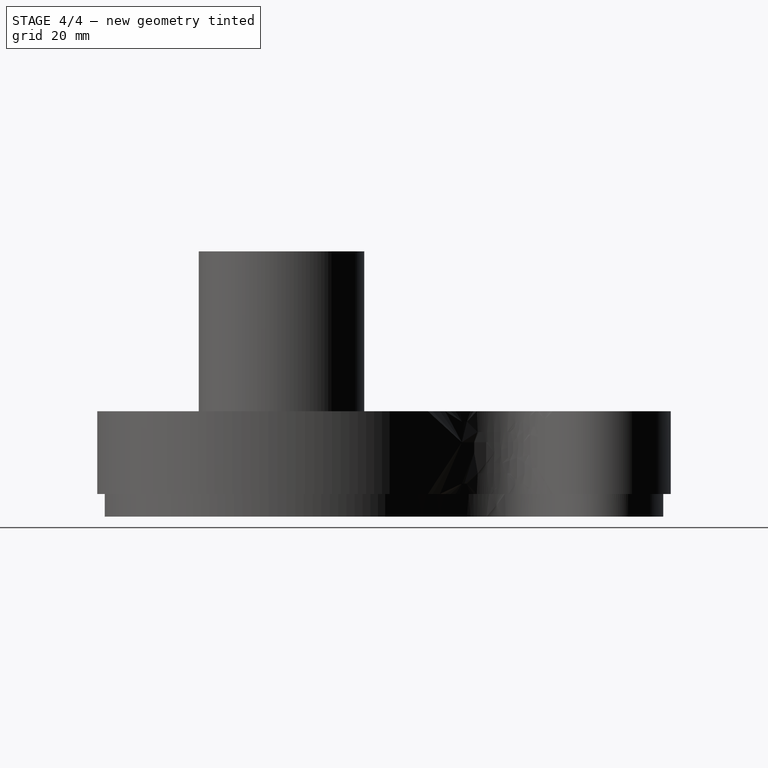
[diagram: stage 4 of 4 — right view after this stage's code; geometry added in this stage tinted green]
FEATURE [Sketcher::SketchObject] Sketch005
  FullyConstrained = true
  MapMode = 5
  Placement = pos=(0,0,0) rot=(1,0,0;3.14159rad)
  Support = -> [SubtractiveLoft]
  sketch-geometry (1):
    g0: Circle CenterX=0 CenterY=0 CenterZ=0 NormalX=0 NormalY=0 NormalZ=1 AngleXU=0 Radius=10
  constraints (2):
    c: Coincident(g0,g-1)
    c: Diameter(g0) = 20
FEATURE [PartDesign::Pocket] Pocket
  BaseFeature = -> SubtractiveLoft
  Length = 5
  Length2 = 100
  Profile = -> Sketch005
  Type = 1
FEATURE [PartDesign::Chamfer] Chamfer
  Angle = 45
  Base = -> Pocket [Edge7]
  BaseFeature = -> Pocket
  ChamferType = 0
  FlipDirection = false
  Size = 2
  Size2 = 1
  SupportTransform = false
FEATURE [PartDesign::Chamfer] Chamfer001
  Angle = 45
  Base = -> Chamfer [Edge12]
  BaseFeature = -> Chamfer
  ChamferType = 0
  FlipDirection = false
  Size = 1
  Size2 = 1
  SupportTransform = false
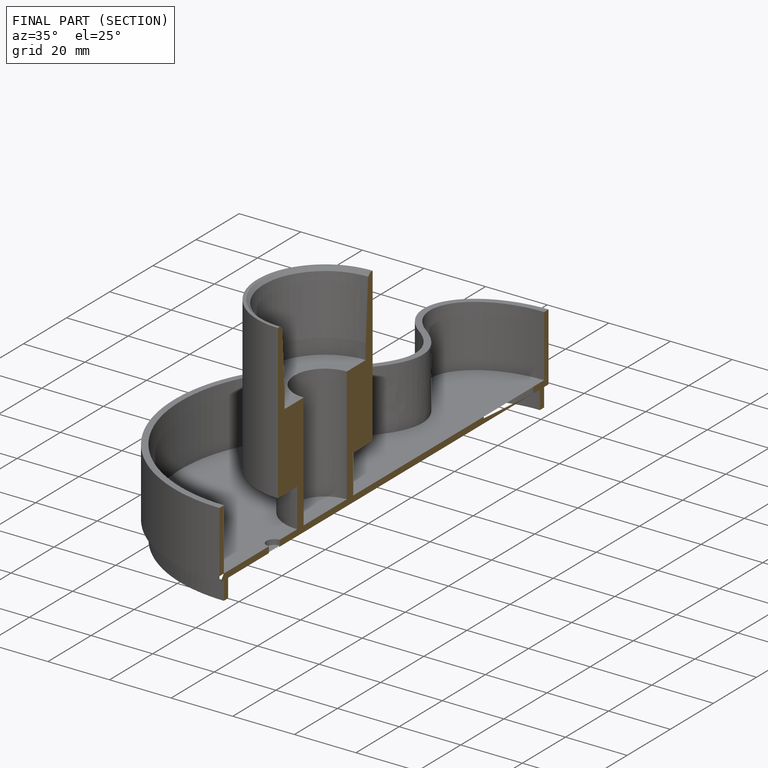
[diagram: finished part — half-section view (interior)]
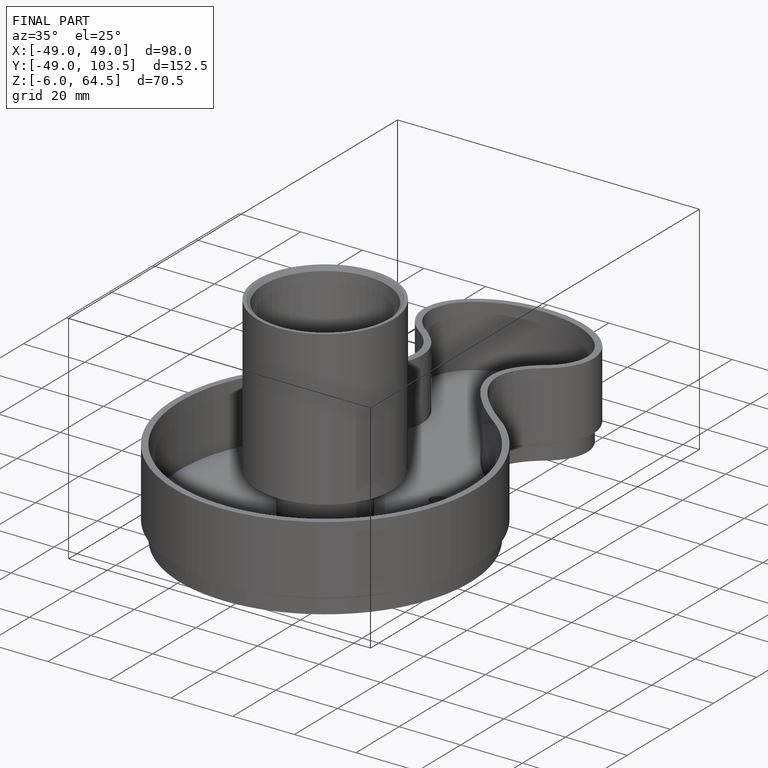
[diagram: finished part — iso view with bounding-box wireframe]
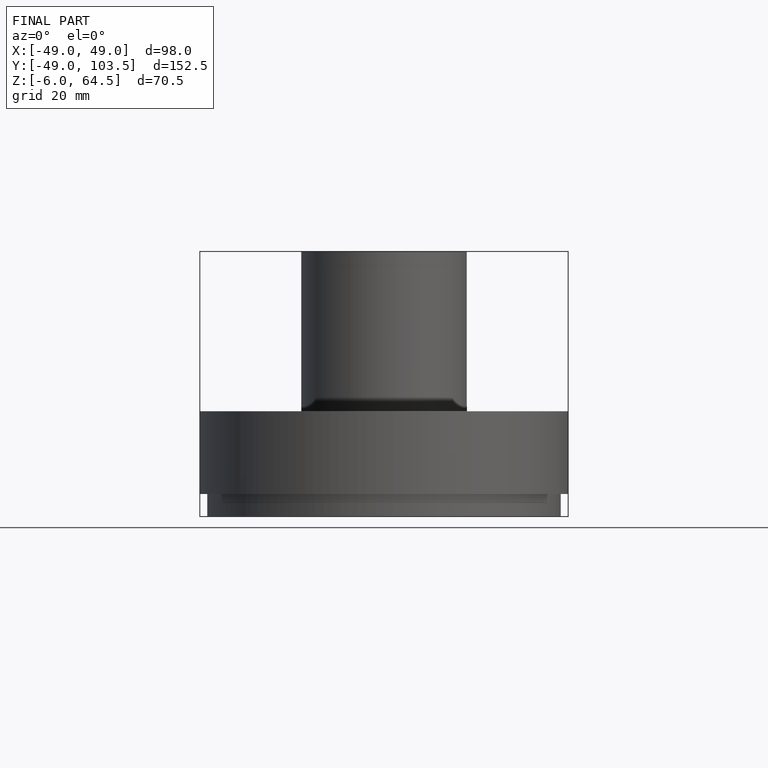
[diagram: finished part — front view with bounding-box wireframe]
